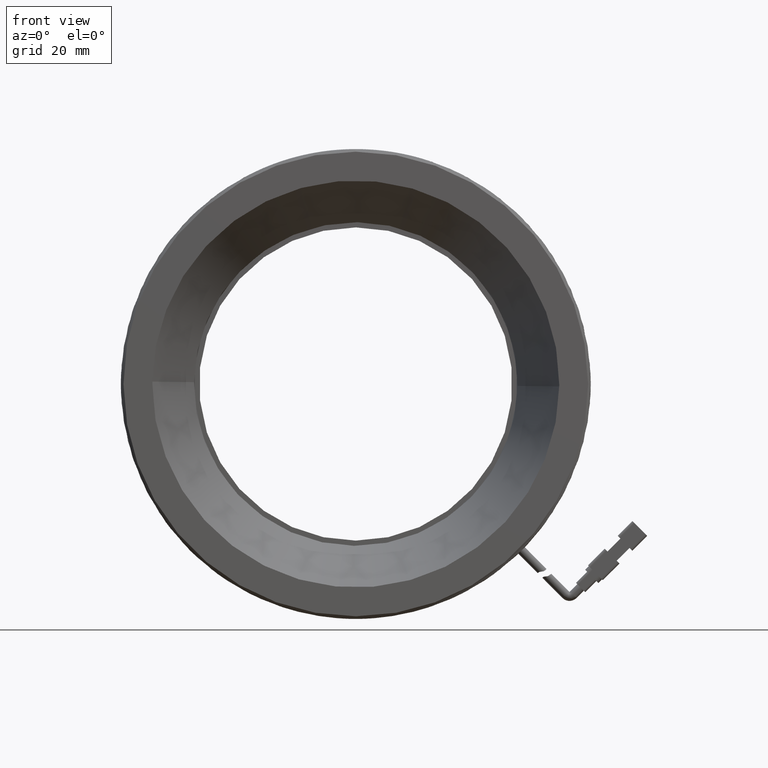
[diagram: clean part render]
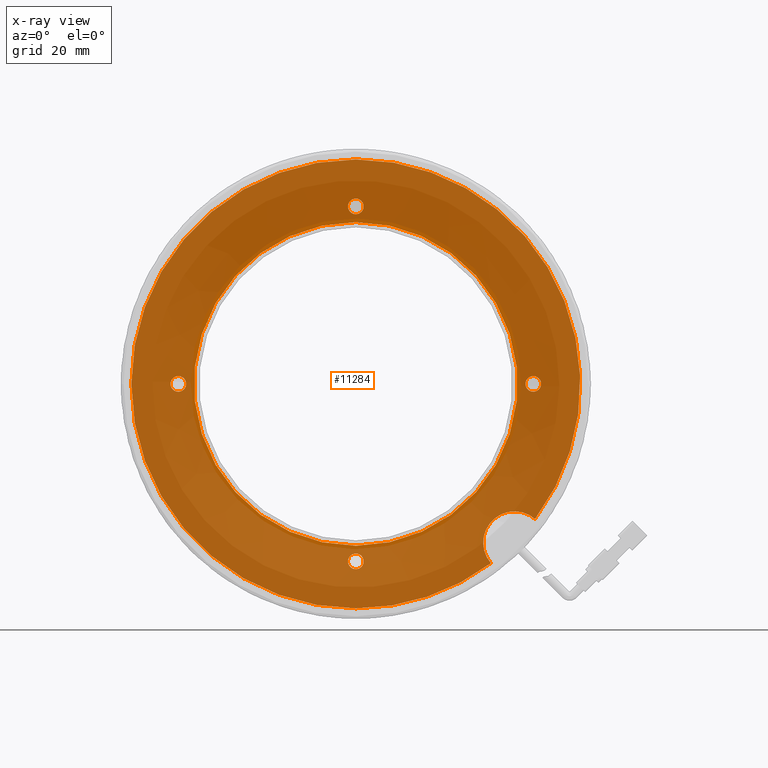
[diagram: x-ray — body ghosted, one internal face saturated and labeled with its STEP entity id]
A machine part, front view, then the same camera in x-ray: the body is ghosted and one INTERNAL B-rep face — a face not visible from any outside direction — is saturated and labeled: STEP entity #11284.
In plain terms, the highlighted planar face has unit normal (0, 1, 0).
Its self-contained STEP definition (entity closure, byte-faithful):
#79 = CARTESIAN_POINT ( 'NONE',  ( 20.64446447695875300, 9.366063379793358100, 3.556510213444514700E-013 ) ) ;
#103 = ORIENTED_EDGE ( 'NONE', *, *, #2411, .T. ) ;
#104 = DIRECTION ( 'NONE',  ( -1.775065882394872500E-015, 0.0000000000000000000, -1.000000000000000000 ) ) ;
#172 = CIRCLE ( 'NONE', #2710, 43.00000000000000000 ) ;
#233 = CIRCLE ( 'NONE', #4514, 43.00000000000000000 ) ;
#330 = CIRCLE ( 'NONE', #334, 1.500000000000001300 ) ;
#334 = AXIS2_PLACEMENT_3D ( 'NONE', #79, #6673, #1043 ) ;
#443 = VERTEX_POINT ( 'NONE', #5953 ) ;
#445 = DIRECTION ( 'NONE',  ( 0.0000000000000000000, 0.0000000000000000000, 1.000000000000000000 ) ) ;
#533 = VERTEX_POINT ( 'NONE', #11483 ) ;
#579 = AXIS2_PLACEMENT_3D ( 'NONE', #9377, #3850, #10299 ) ;
#596 = AXIS2_PLACEMENT_3D ( 'NONE', #8580, #3046, #9520 ) ;
#691 = ORIENTED_EDGE ( 'NONE', *, *, #10902, .T. ) ;
#760 = CARTESIAN_POINT ( 'NONE',  ( 20.64446447695875300, 9.366063379793358100, 1.500000000000357000 ) ) ;
#771 = AXIS2_PLACEMENT_3D ( 'NONE', #8488, #11394, #8563 ) ;
#908 = DIRECTION ( 'NONE',  ( 0.0000000000000000000, -0.0000000000000000000, 1.000000000000000000 ) ) ;
#1043 = DIRECTION ( 'NONE',  ( 0.0000000000000000000, 0.0000000000000000000, 1.000000000000000000 ) ) ;
#1140 = EDGE_CURVE ( 'NONE', #11799, #12112, #7158, .T. ) ;
#1156 = VERTEX_POINT ( 'NONE', #760 ) ;
#1237 = CARTESIAN_POINT ( 'NONE',  ( -13.35553552304101300, 9.366063379793358100, -34.00000000000000000 ) ) ;
#1486 = CARTESIAN_POINT ( 'NONE',  ( 12.52175530708256300, 9.366063379793358100, -34.34189597697234600 ) ) ;
#1594 = CARTESIAN_POINT ( 'NONE',  ( 20.64446447695875300, 9.366063379793358100, 3.556510213444514700E-013 ) ) ;
#1638 = FACE_BOUND ( 'NONE', #5044, .T. ) ;
#1688 = VERTEX_POINT ( 'NONE', #7405 ) ;
#1698 = DIRECTION ( 'NONE',  ( -0.0000000000000000000, 1.000000000000000000, -0.0000000000000000000 ) ) ;
#1706 = EDGE_CURVE ( 'NONE', #6904, #7650, #2195, .T. ) ;
#1737 = AXIS2_PLACEMENT_3D ( 'NONE', #1237, #1698, #1864 ) ;
#1797 = EDGE_CURVE ( 'NONE', #1156, #533, #8139, .T. ) ;
#1815 = EDGE_LOOP ( 'NONE', ( #2039, #3292 ) ) ;
#1864 = DIRECTION ( 'NONE',  ( 0.0000000000000000000, 0.0000000000000000000, 1.000000000000000000 ) ) ;
#1938 = FACE_BOUND ( 'NONE', #1815, .T. ) ;
#2039 = ORIENTED_EDGE ( 'NONE', *, *, #10316, .F. ) ;
#2054 = EDGE_CURVE ( 'NONE', #7611, #6904, #233, .T. ) ;
#2110 = EDGE_LOOP ( 'NONE', ( #9035, #7167 ) ) ;
#2162 = AXIS2_PLACEMENT_3D ( 'NONE', #8258, #7543, #7503 ) ;
#2195 = CIRCLE ( 'NONE', #771, 43.00000000000000000 ) ;
#2288 = CIRCLE ( 'NONE', #5063, 5.999999999999998200 ) ;
#2411 = EDGE_CURVE ( 'NONE', #1688, #8439, #4979, .T. ) ;
#2668 = EDGE_CURVE ( 'NONE', #5709, #8434, #10286, .T. ) ;
#2710 = AXIS2_PLACEMENT_3D ( 'NONE', #11331, #5762, #104 ) ;
#2752 = DIRECTION ( 'NONE',  ( 0.0000000000000000000, 0.0000000000000000000, -1.000000000000000000 ) ) ;
#2933 = VERTEX_POINT ( 'NONE', #5055 ) ;
#3046 = DIRECTION ( 'NONE',  ( -0.0000000000000000000, 1.000000000000000000, -0.0000000000000000000 ) ) ;
#3211 = CIRCLE ( 'NONE', #579, 31.00000000000000000 ) ;
#3274 = EDGE_CURVE ( 'NONE', #2933, #443, #3211, .T. ) ;
#3292 = ORIENTED_EDGE ( 'NONE', *, *, #3274, .F. ) ;
#3314 = CIRCLE ( 'NONE', #8135, 1.500000000000001300 ) ;
#3342 = CARTESIAN_POINT ( 'NONE',  ( -13.35553552304125100, 9.366063379793358100, 32.50000000000000000 ) ) ;
#3506 = ORIENTED_EDGE ( 'NONE', *, *, #4367, .F. ) ;
#3799 = AXIS2_PLACEMENT_3D ( 'NONE', #11636, #6088, #445 ) ;
#3850 = DIRECTION ( 'NONE',  ( -0.0000000000000000000, -1.000000000000000000, -0.0000000000000000000 ) ) ;
#3970 = CARTESIAN_POINT ( 'NONE',  ( -13.35553552304125100, 9.366063379793358100, 0.0000000000000000000 ) ) ;
#4147 = EDGE_CURVE ( 'NONE', #12112, #11799, #8101, .T. ) ;
#4157 = FACE_BOUND ( 'NONE', #2110, .T. ) ;
#4305 = EDGE_CURVE ( 'NONE', #8434, #5709, #5094, .T. ) ;
#4367 = EDGE_CURVE ( 'NONE', #7650, #7421, #2288, .T. ) ;
#4514 = AXIS2_PLACEMENT_3D ( 'NONE', #11421, #11375, #2752 ) ;
#4623 = CARTESIAN_POINT ( 'NONE',  ( -13.35553552304125100, 9.366063379793358100, -43.00000000000000000 ) ) ;
#4909 = DIRECTION ( 'NONE',  ( 0.0000000000000000000, 0.0000000000000000000, -1.000000000000000000 ) ) ;
#4979 = CIRCLE ( 'NONE', #2162, 1.500000000000001300 ) ;
#5044 = EDGE_LOOP ( 'NONE', ( #5086, #691 ) ) ;
#5055 = CARTESIAN_POINT ( 'NONE',  ( -13.35553552304124700, 9.366063379793358100, 31.00000000000000000 ) ) ;
#5063 = AXIS2_PLACEMENT_3D ( 'NONE', #10778, #5242, #11726 ) ;
#5086 = ORIENTED_EDGE ( 'NONE', *, *, #1797, .T. ) ;
#5094 = CIRCLE ( 'NONE', #3799, 1.500000000000001300 ) ;
#5105 = EDGE_CURVE ( 'NONE', #8439, #1688, #3314, .T. ) ;
#5195 = ORIENTED_EDGE ( 'NONE', *, *, #4305, .T. ) ;
#5207 = CARTESIAN_POINT ( 'NONE',  ( -47.35553552304125400, 9.366063379793358100, -1.182302903031183800E-013 ) ) ;
#5242 = DIRECTION ( 'NONE',  ( -0.0000000000000000000, -1.000000000000000000, -0.0000000000000000000 ) ) ;
#5445 = AXIS2_PLACEMENT_3D ( 'NONE', #8396, #8352, #8310 ) ;
#5521 = PLANE ( 'NONE',  #11760 ) ;
#5542 = EDGE_CURVE ( 'NONE', #7421, #7611, #172, .T. ) ;
#5709 = VERTEX_POINT ( 'NONE', #3342 ) ;
#5762 = DIRECTION ( 'NONE',  ( 0.0000000000000000000, 1.000000000000000000, 0.0000000000000000000 ) ) ;
#5953 = CARTESIAN_POINT ( 'NONE',  ( -13.35553552304125100, 9.366063379793358100, -31.00000000000000000 ) ) ;
#6088 = DIRECTION ( 'NONE',  ( -0.0000000000000000000, 1.000000000000000000, -0.0000000000000000000 ) ) ;
#6129 = DIRECTION ( 'NONE',  ( 0.0000000000000000000, 0.0000000000000000000, 1.000000000000000000 ) ) ;
#6443 = AXIS2_PLACEMENT_3D ( 'NONE', #1594, #11551, #11619 ) ;
#6538 = DIRECTION ( 'NONE',  ( 0.0000000000000000000, 1.000000000000000000, 0.0000000000000000000 ) ) ;
#6566 = CARTESIAN_POINT ( 'NONE',  ( 20.98636045393083900, 9.366063379793358100, -25.87729083012415300 ) ) ;
#6577 = ORIENTED_EDGE ( 'NONE', *, *, #5542, .F. ) ;
#6618 = FACE_BOUND ( 'NONE', #6773, .T. ) ;
#6668 = ORIENTED_EDGE ( 'NONE', *, *, #5105, .T. ) ;
#6673 = DIRECTION ( 'NONE',  ( -0.0000000000000000000, 1.000000000000000000, -0.0000000000000000000 ) ) ;
#6683 = CIRCLE ( 'NONE', #8002, 31.00000000000000000 ) ;
#6773 = EDGE_LOOP ( 'NONE', ( #103, #6668 ) ) ;
#6793 = ORIENTED_EDGE ( 'NONE', *, *, #2668, .T. ) ;
#6807 = CARTESIAN_POINT ( 'NONE',  ( -47.35553552304125400, 9.366063379793358100, -1.500000000000119500 ) ) ;
#6904 = VERTEX_POINT ( 'NONE', #9067 ) ;
#6919 = FACE_BOUND ( 'NONE', #9177, .T. ) ;
#7158 = CIRCLE ( 'NONE', #1737, 1.500000000000001300 ) ;
#7167 = ORIENTED_EDGE ( 'NONE', *, *, #1140, .T. ) ;
#7405 = CARTESIAN_POINT ( 'NONE',  ( -47.35553552304125400, 9.366063379793358100, 1.499999999999883200 ) ) ;
#7421 = VERTEX_POINT ( 'NONE', #1486 ) ;
#7503 = DIRECTION ( 'NONE',  ( 0.0000000000000000000, 0.0000000000000000000, 1.000000000000000000 ) ) ;
#7543 = DIRECTION ( 'NONE',  ( -0.0000000000000000000, 1.000000000000000000, -0.0000000000000000000 ) ) ;
#7611 = VERTEX_POINT ( 'NONE', #4623 ) ;
#7650 = VERTEX_POINT ( 'NONE', #6566 ) ;
#7864 = ORIENTED_EDGE ( 'NONE', *, *, #1706, .F. ) ;
#8002 = AXIS2_PLACEMENT_3D ( 'NONE', #3970, #10421, #4909 ) ;
#8101 = CIRCLE ( 'NONE', #596, 1.500000000000001300 ) ;
#8135 = AXIS2_PLACEMENT_3D ( 'NONE', #5207, #11682, #6129 ) ;
#8139 = CIRCLE ( 'NONE', #6443, 1.500000000000001300 ) ;
#8258 = CARTESIAN_POINT ( 'NONE',  ( -47.35553552304125400, 9.366063379793358100, -1.182302903031183800E-013 ) ) ;
#8310 = DIRECTION ( 'NONE',  ( 0.0000000000000000000, 0.0000000000000000000, 1.000000000000000000 ) ) ;
#8352 = DIRECTION ( 'NONE',  ( -0.0000000000000000000, 1.000000000000000000, -0.0000000000000000000 ) ) ;
#8396 = CARTESIAN_POINT ( 'NONE',  ( -13.35553552304125100, 9.366063379793358100, 34.00000000000000000 ) ) ;
#8434 = VERTEX_POINT ( 'NONE', #11424 ) ;
#8439 = VERTEX_POINT ( 'NONE', #6807 ) ;
#8488 = CARTESIAN_POINT ( 'NONE',  ( -13.35553552304125100, 9.366063379793358100, 0.0000000000000000000 ) ) ;
#8563 = DIRECTION ( 'NONE',  ( 0.0000000000000000000, 0.0000000000000000000, -1.000000000000000000 ) ) ;
#8580 = CARTESIAN_POINT ( 'NONE',  ( -13.35553552304101300, 9.366063379793358100, -34.00000000000000000 ) ) ;
#8805 = EDGE_LOOP ( 'NONE', ( #6577, #3506, #7864, #9752 ) ) ;
#9035 = ORIENTED_EDGE ( 'NONE', *, *, #4147, .T. ) ;
#9056 = FACE_OUTER_BOUND ( 'NONE', #8805, .T. ) ;
#9067 = CARTESIAN_POINT ( 'NONE',  ( -13.35553552304124600, 9.366063379793358100, 43.00000000000000000 ) ) ;
#9177 = EDGE_LOOP ( 'NONE', ( #5195, #6793 ) ) ;
#9377 = CARTESIAN_POINT ( 'NONE',  ( -13.35553552304125100, 9.366063379793358100, 0.0000000000000000000 ) ) ;
#9520 = DIRECTION ( 'NONE',  ( 0.0000000000000000000, 0.0000000000000000000, 1.000000000000000000 ) ) ;
#9562 = CARTESIAN_POINT ( 'NONE',  ( -13.35553552304101300, 9.366063379793358100, -35.50000000000000700 ) ) ;
#9752 = ORIENTED_EDGE ( 'NONE', *, *, #2054, .F. ) ;
#10286 = CIRCLE ( 'NONE', #5445, 1.500000000000001300 ) ;
#10299 = DIRECTION ( 'NONE',  ( 0.0000000000000000000, 0.0000000000000000000, -1.000000000000000000 ) ) ;
#10316 = EDGE_CURVE ( 'NONE', #443, #2933, #6683, .T. ) ;
#10421 = DIRECTION ( 'NONE',  ( -0.0000000000000000000, -1.000000000000000000, -0.0000000000000000000 ) ) ;
#10778 = CARTESIAN_POINT ( 'NONE',  ( 17.05005606798013700, 9.366063379793358100, -30.40559159102169300 ) ) ;
#10902 = EDGE_CURVE ( 'NONE', #533, #1156, #330, .T. ) ;
#11284 = ADVANCED_FACE ( 'NONE', ( #9056, #1938, #6919, #6618, #4157, #1638 ), #5521, .F. ) ;
#11331 = CARTESIAN_POINT ( 'NONE',  ( -13.35553552304125100, 9.366063379793358100, 0.0000000000000000000 ) ) ;
#11375 = DIRECTION ( 'NONE',  ( 0.0000000000000000000, 1.000000000000000000, 0.0000000000000000000 ) ) ;
#11394 = DIRECTION ( 'NONE',  ( 0.0000000000000000000, 1.000000000000000000, 0.0000000000000000000 ) ) ;
#11421 = CARTESIAN_POINT ( 'NONE',  ( -13.35553552304125100, 9.366063379793358100, 0.0000000000000000000 ) ) ;
#11424 = CARTESIAN_POINT ( 'NONE',  ( -13.35553552304125100, 9.366063379793358100, 35.50000000000000700 ) ) ;
#11483 = CARTESIAN_POINT ( 'NONE',  ( 20.64446447695875300, 9.366063379793358100, -1.499999999999645600 ) ) ;
#11551 = DIRECTION ( 'NONE',  ( -0.0000000000000000000, 1.000000000000000000, -0.0000000000000000000 ) ) ;
#11619 = DIRECTION ( 'NONE',  ( 0.0000000000000000000, 0.0000000000000000000, 1.000000000000000000 ) ) ;
#11636 = CARTESIAN_POINT ( 'NONE',  ( -13.35553552304125100, 9.366063379793358100, 34.00000000000000000 ) ) ;
#11682 = DIRECTION ( 'NONE',  ( -0.0000000000000000000, 1.000000000000000000, -0.0000000000000000000 ) ) ;
#11726 = DIRECTION ( 'NONE',  ( 0.0000000000000000000, 0.0000000000000000000, -1.000000000000000000 ) ) ;
#11760 = AXIS2_PLACEMENT_3D ( 'NONE', #12083, #6538, #908 ) ;
#11799 = VERTEX_POINT ( 'NONE', #9562 ) ;
#11954 = CARTESIAN_POINT ( 'NONE',  ( -13.35553552304101300, 9.366063379793358100, -32.50000000000000000 ) ) ;
#12083 = CARTESIAN_POINT ( 'NONE',  ( -56.35553552304124700, 9.366063379793358100, 0.0000000000000000000 ) ) ;
#12112 = VERTEX_POINT ( 'NONE', #11954 ) ;